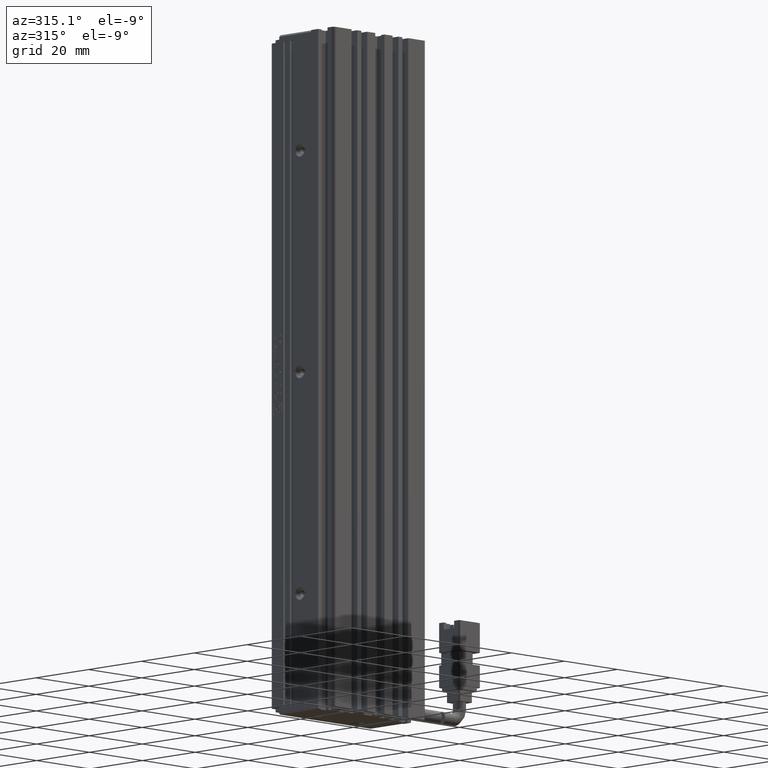
[diagram: clean part render]
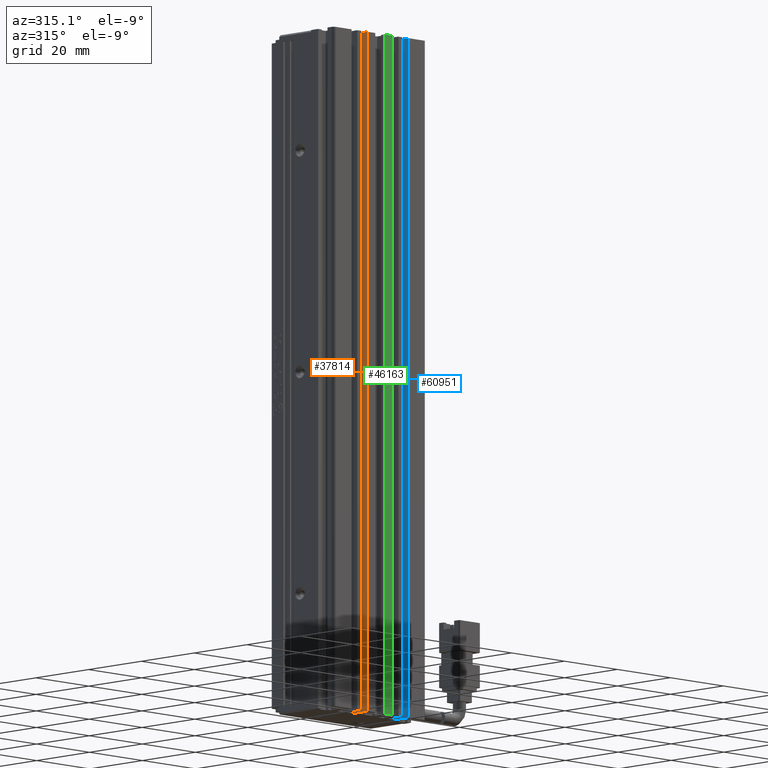
[diagram: same view with three faces highlighted in distinct colors, each labeled with its STEP entity id]
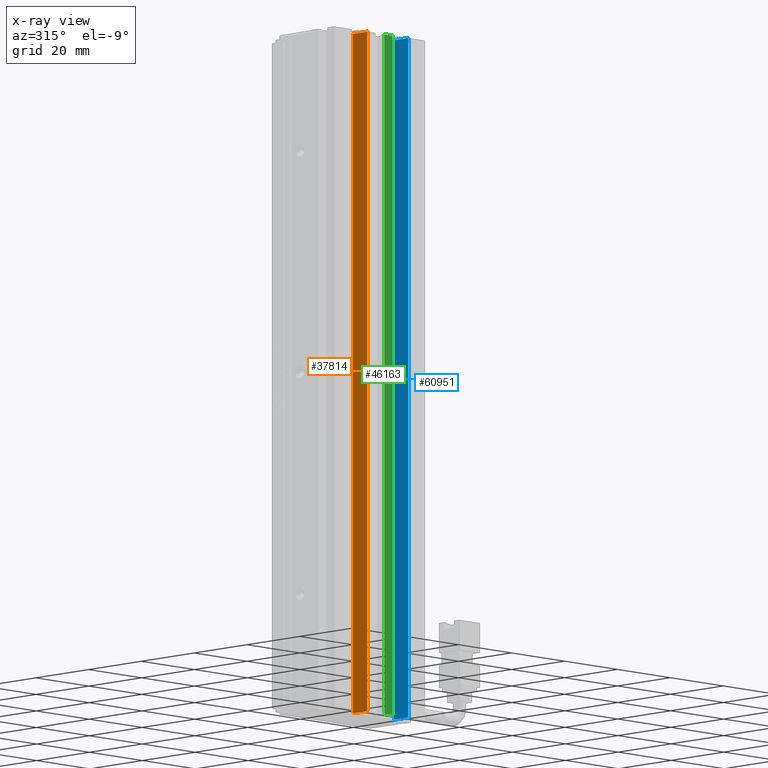
[diagram: x-ray of the same camera — body ghosted, the three highlighted faces saturated]
A machine part, auxiliary view with three faces highlighted in distinct colors.
The next image is the same camera in x-ray (body ghosted, the three faces saturated) — at least one of them is partly hidden behind the body in this view.
Their STEP definitions:

[orange] entity #37814 — the highlighted planar face has unit normal (-1, 0, 0).
#480 = PLANE ( 'NONE',  #25517 ) ;
#1893 = CARTESIAN_POINT ( 'NONE',  ( 36.12537974683543500, 7.083797468354437600, -23.00000000000000700 ) ) ;
#2266 = CARTESIAN_POINT ( 'NONE',  ( 36.12537974683543500, 16.49073232304837000, -207.0000000000000300 ) ) ;
#2311 = LINE ( 'NONE', #8804, #40544 ) ;
#3420 = CARTESIAN_POINT ( 'NONE',  ( 36.12537974683543500, 16.49073232304837000, -23.00000000000000700 ) ) ;
#5721 = DIRECTION ( 'NONE',  ( 0.0000000000000000000, -0.0000000000000000000, -1.000000000000000000 ) ) ;
#8804 = CARTESIAN_POINT ( 'NONE',  ( 36.12537974683543500, 7.083797468354437600, -207.0000000000000300 ) ) ;
#8866 = ORIENTED_EDGE ( 'NONE', *, *, #42789, .T. ) ;
#13304 = VECTOR ( 'NONE', #33900, 1000.000000000000000 ) ;
#14545 = CARTESIAN_POINT ( 'NONE',  ( 36.12537974683543500, 10.99073232304837000, -207.0000000000000300 ) ) ;
#17115 = LINE ( 'NONE', #1893, #13304 ) ;
#17651 = ORIENTED_EDGE ( 'NONE', *, *, #17901, .T. ) ;
#17901 = EDGE_CURVE ( 'NONE', #43268, #73202, #2311, .T. ) ;
#20116 = ORIENTED_EDGE ( 'NONE', *, *, #74530, .F. ) ;
#24450 = DIRECTION ( 'NONE',  ( -1.000000000000000000, 0.0000000000000000000, 0.0000000000000000000 ) ) ;
#25481 = VERTEX_POINT ( 'NONE', #27718 ) ;
#25486 = VECTOR ( 'NONE', #5721, 1000.000000000000000 ) ;
#25517 = AXIS2_PLACEMENT_3D ( 'NONE', #72566, #24450, #30371 ) ;
#27417 = LINE ( 'NONE', #78559, #25486 ) ;
#27718 = CARTESIAN_POINT ( 'NONE',  ( 36.12537974683543500, 16.49073232304837000, -23.00000000000000700 ) ) ;
#30371 = DIRECTION ( 'NONE',  ( 0.0000000000000000000, 0.0000000000000000000, 1.000000000000000000 ) ) ;
#33900 = DIRECTION ( 'NONE',  ( -0.0000000000000000000, -1.000000000000000000, 0.0000000000000000000 ) ) ;
#34085 = ORIENTED_EDGE ( 'NONE', *, *, #37585, .F. ) ;
#34384 = DIRECTION ( 'NONE',  ( -0.0000000000000000000, -0.0000000000000000000, -1.000000000000000000 ) ) ;
#35341 = EDGE_LOOP ( 'NONE', ( #34085, #8866, #17651, #20116 ) ) ;
#37585 = EDGE_CURVE ( 'NONE', #25481, #55810, #17115, .T. ) ;
#37814 = ADVANCED_FACE ( 'NONE', ( #40946 ), #480, .T. ) ;
#40544 = VECTOR ( 'NONE', #51321, 1000.000000000000000 ) ;
#40946 = FACE_OUTER_BOUND ( 'NONE', #35341, .T. ) ;
#41087 = VECTOR ( 'NONE', #34384, 1000.000000000000000 ) ;
#42789 = EDGE_CURVE ( 'NONE', #25481, #43268, #48622, .T. ) ;
#43268 = VERTEX_POINT ( 'NONE', #2266 ) ;
#48622 = LINE ( 'NONE', #3420, #41087 ) ;
#49096 = CARTESIAN_POINT ( 'NONE',  ( 36.12537974683543500, 10.99073232304837000, -23.00000000000000700 ) ) ;
#51321 = DIRECTION ( 'NONE',  ( -0.0000000000000000000, -1.000000000000000000, 0.0000000000000000000 ) ) ;
#55810 = VERTEX_POINT ( 'NONE', #49096 ) ;
#72566 = CARTESIAN_POINT ( 'NONE',  ( 36.12537974683543500, 7.083797468354437600, -23.00000000000000700 ) ) ;
#73202 = VERTEX_POINT ( 'NONE', #14545 ) ;
#74530 = EDGE_CURVE ( 'NONE', #55810, #73202, #27417, .T. ) ;
#78559 = CARTESIAN_POINT ( 'NONE',  ( 36.12537974683543500, 10.99073232304837000, -23.00000000000000700 ) ) ;

[blue] entity #60951 — the highlighted planar face has unit normal (-1, 0, 0).
#2937 = VERTEX_POINT ( 'NONE', #7237 ) ;
#5102 = VERTEX_POINT ( 'NONE', #26633 ) ;
#5115 = LINE ( 'NONE', #29570, #78368 ) ;
#5232 = CARTESIAN_POINT ( 'NONE',  ( 51.62537974683541400, 16.49073232304836600, -23.00000000000000700 ) ) ;
#7237 = CARTESIAN_POINT ( 'NONE',  ( 51.62537974683542100, 16.49073232304836600, -22.99999999999999300 ) ) ;
#8470 = ORIENTED_EDGE ( 'NONE', *, *, #32993, .T. ) ;
#9554 = EDGE_CURVE ( 'NONE', #2937, #5102, #75218, .T. ) ;
#16891 = ORIENTED_EDGE ( 'NONE', *, *, #9554, .T. ) ;
#17323 = PLANE ( 'NONE',  #62651 ) ;
#18173 = LINE ( 'NONE', #55117, #46710 ) ;
#19415 = ORIENTED_EDGE ( 'NONE', *, *, #50201, .T. ) ;
#19697 = CARTESIAN_POINT ( 'NONE',  ( 51.62537974683542100, 10.99073232304837000, -207.0000000000000300 ) ) ;
#20042 = LINE ( 'NONE', #41570, #54282 ) ;
#22907 = ORIENTED_EDGE ( 'NONE', *, *, #30201, .F. ) ;
#26633 = CARTESIAN_POINT ( 'NONE',  ( 51.62537974683542100, 16.49073232304836600, -207.0000000000000300 ) ) ;
#29570 = CARTESIAN_POINT ( 'NONE',  ( 51.62537974683541400, 7.083797468354437600, -207.0000000000000300 ) ) ;
#29656 = VECTOR ( 'NONE', #61301, 1000.000000000000000 ) ;
#30201 = EDGE_CURVE ( 'NONE', #2937, #76554, #18173, .T. ) ;
#32993 = EDGE_CURVE ( 'NONE', #43980, #76554, #20042, .T. ) ;
#33988 = EDGE_LOOP ( 'NONE', ( #22907, #16891, #19415, #8470 ) ) ;
#36027 = DIRECTION ( 'NONE',  ( -0.0000000000000000000, -1.000000000000000000, 0.0000000000000000000 ) ) ;
#41570 = CARTESIAN_POINT ( 'NONE',  ( 51.62537974683541400, 10.99073232304837000, -23.00000000000000700 ) ) ;
#42331 = DIRECTION ( 'NONE',  ( 0.0000000000000000000, 0.0000000000000000000, 1.000000000000000000 ) ) ;
#43980 = VERTEX_POINT ( 'NONE', #19697 ) ;
#46710 = VECTOR ( 'NONE', #61237, 1000.000000000000000 ) ;
#47860 = FACE_OUTER_BOUND ( 'NONE', #33988, .T. ) ;
#48703 = CARTESIAN_POINT ( 'NONE',  ( 51.62537974683541400, 7.083797468354437600, -23.00000000000000700 ) ) ;
#50201 = EDGE_CURVE ( 'NONE', #5102, #43980, #5115, .T. ) ;
#50339 = CARTESIAN_POINT ( 'NONE',  ( 51.62537974683542100, 10.99073232304837000, -22.99999999999999300 ) ) ;
#54282 = VECTOR ( 'NONE', #42331, 1000.000000000000000 ) ;
#54748 = DIRECTION ( 'NONE',  ( 0.0000000000000000000, 0.0000000000000000000, 1.000000000000000000 ) ) ;
#55117 = CARTESIAN_POINT ( 'NONE',  ( 51.62537974683541400, 7.083797468354437600, -23.00000000000000700 ) ) ;
#60951 = ADVANCED_FACE ( 'NONE', ( #47860 ), #17323, .T. ) ;
#61237 = DIRECTION ( 'NONE',  ( -0.0000000000000000000, -1.000000000000000000, 0.0000000000000000000 ) ) ;
#61301 = DIRECTION ( 'NONE',  ( -0.0000000000000000000, -0.0000000000000000000, -1.000000000000000000 ) ) ;
#62651 = AXIS2_PLACEMENT_3D ( 'NONE', #48703, #65905, #54748 ) ;
#65905 = DIRECTION ( 'NONE',  ( -1.000000000000000000, 0.0000000000000000000, 0.0000000000000000000 ) ) ;
#75218 = LINE ( 'NONE', #5232, #29656 ) ;
#76554 = VERTEX_POINT ( 'NONE', #50339 ) ;
#78368 = VECTOR ( 'NONE', #36027, 1000.000000000000000 ) ;

[green] entity #46163 — the highlighted planar face has unit normal (0, 1, 0).
#5043 = DIRECTION ( 'NONE',  ( 0.0000000000000000000, 0.0000000000000000000, 1.000000000000000000 ) ) ;
#5135 = LINE ( 'NONE', #29635, #51798 ) ;
#7541 = DIRECTION ( 'NONE',  ( 0.0000000000000000000, -0.0000000000000000000, 1.000000000000000000 ) ) ;
#9872 = EDGE_LOOP ( 'NONE', ( #46970, #73473, #51352, #43213 ) ) ;
#11954 = CARTESIAN_POINT ( 'NONE',  ( 42.67537974683542500, 10.99073232304837000, -23.00000000000000700 ) ) ;
#13143 = CARTESIAN_POINT ( 'NONE',  ( 40.92537974683542500, 10.99073232304837000, -23.00000000000000700 ) ) ;
#13357 = EDGE_CURVE ( 'NONE', #58217, #57758, #14383, .T. ) ;
#14325 = VECTOR ( 'NONE', #68713, 1000.000000000000000 ) ;
#14383 = LINE ( 'NONE', #51827, #19056 ) ;
#14402 = VECTOR ( 'NONE', #5043, 1000.000000000000000 ) ;
#17318 = EDGE_CURVE ( 'NONE', #47904, #58217, #62770, .T. ) ;
#19056 = VECTOR ( 'NONE', #40485, 1000.000000000000000 ) ;
#19152 = EDGE_CURVE ( 'NONE', #35923, #57758, #77115, .T. ) ;
#25095 = DIRECTION ( 'NONE',  ( 0.0000000000000000000, 1.000000000000000000, 0.0000000000000000000 ) ) ;
#28590 = EDGE_CURVE ( 'NONE', #47904, #35923, #5135, .T. ) ;
#29635 = CARTESIAN_POINT ( 'NONE',  ( 40.92537974683542500, 10.99073232304837000, -207.0000000000000300 ) ) ;
#35923 = VERTEX_POINT ( 'NONE', #77022 ) ;
#40485 = DIRECTION ( 'NONE',  ( 1.000000000000000000, 0.0000000000000000000, 0.0000000000000000000 ) ) ;
#43213 = ORIENTED_EDGE ( 'NONE', *, *, #28590, .T. ) ;
#44329 = CARTESIAN_POINT ( 'NONE',  ( 42.67537974683542500, 10.99073232304837000, -23.00000000000000700 ) ) ;
#44755 = FACE_OUTER_BOUND ( 'NONE', #9872, .T. ) ;
#46163 = ADVANCED_FACE ( 'NONE', ( #44755 ), #48259, .F. ) ;
#46970 = ORIENTED_EDGE ( 'NONE', *, *, #19152, .T. ) ;
#47673 = DIRECTION ( 'NONE',  ( 1.000000000000000000, 0.0000000000000000000, 0.0000000000000000000 ) ) ;
#47887 = CARTESIAN_POINT ( 'NONE',  ( 45.72537974683541500, 10.99073232304837000, -23.00000000000000700 ) ) ;
#47904 = VERTEX_POINT ( 'NONE', #69431 ) ;
#48259 = PLANE ( 'NONE',  #63049 ) ;
#51352 = ORIENTED_EDGE ( 'NONE', *, *, #17318, .F. ) ;
#51798 = VECTOR ( 'NONE', #47673, 1000.000000000000000 ) ;
#51827 = CARTESIAN_POINT ( 'NONE',  ( 40.92537974683542500, 10.99073232304837000, -23.00000000000000700 ) ) ;
#57444 = CARTESIAN_POINT ( 'NONE',  ( 45.72537974683541500, 10.99073232304837000, -23.00000000000000700 ) ) ;
#57758 = VERTEX_POINT ( 'NONE', #57444 ) ;
#58217 = VERTEX_POINT ( 'NONE', #11954 ) ;
#62770 = LINE ( 'NONE', #44329, #14325 ) ;
#63049 = AXIS2_PLACEMENT_3D ( 'NONE', #13143, #25095, #7541 ) ;
#68713 = DIRECTION ( 'NONE',  ( 0.0000000000000000000, -0.0000000000000000000, 1.000000000000000000 ) ) ;
#69431 = CARTESIAN_POINT ( 'NONE',  ( 42.67537974683542500, 10.99073232304837000, -207.0000000000000300 ) ) ;
#73473 = ORIENTED_EDGE ( 'NONE', *, *, #13357, .F. ) ;
#77022 = CARTESIAN_POINT ( 'NONE',  ( 45.72537974683541500, 10.99073232304837000, -207.0000000000000300 ) ) ;
#77115 = LINE ( 'NONE', #47887, #14402 ) ;